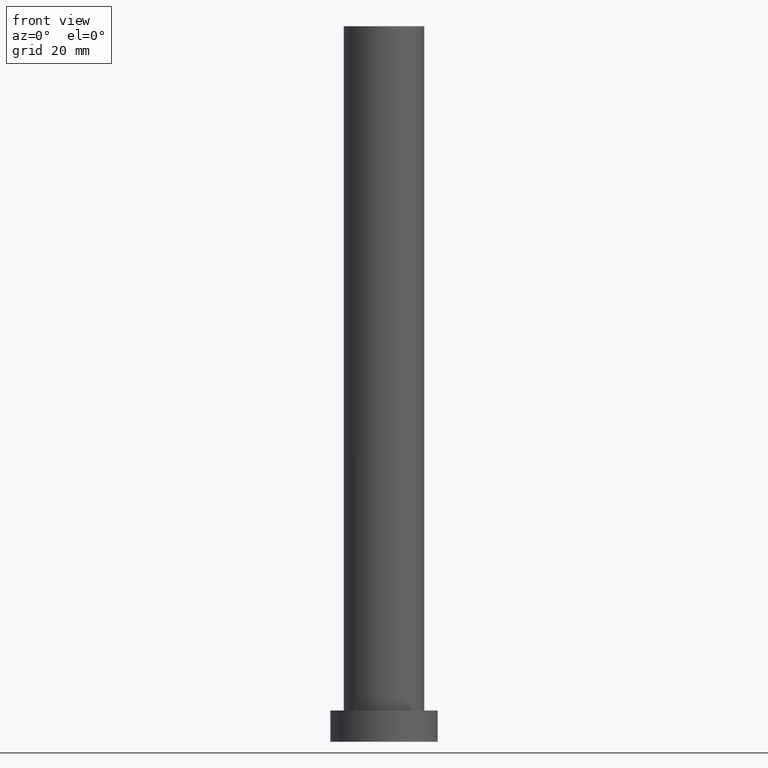
[diagram: clean part render]
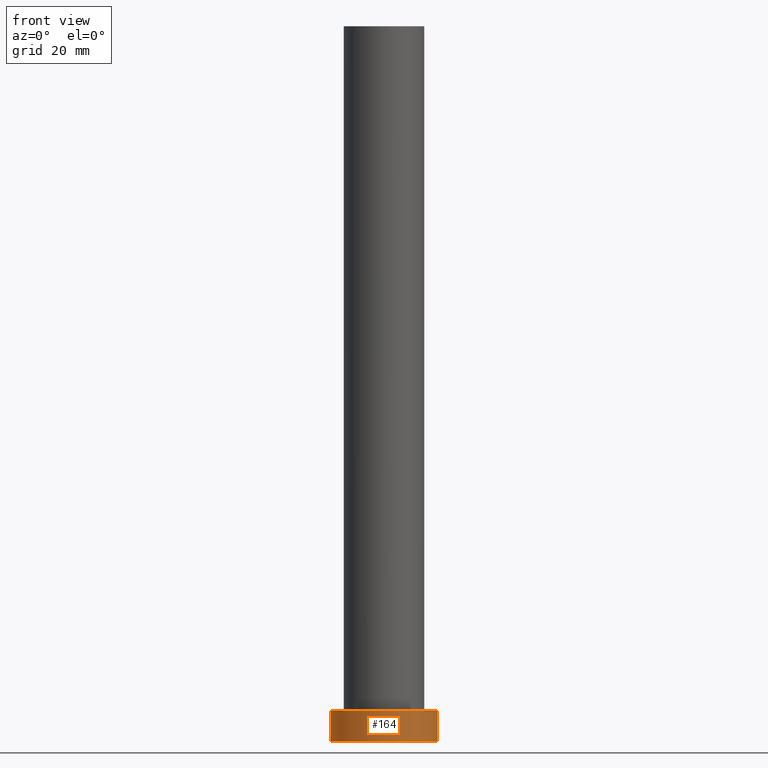
[diagram: same view with one face highlighted and labeled with its STEP entity id]
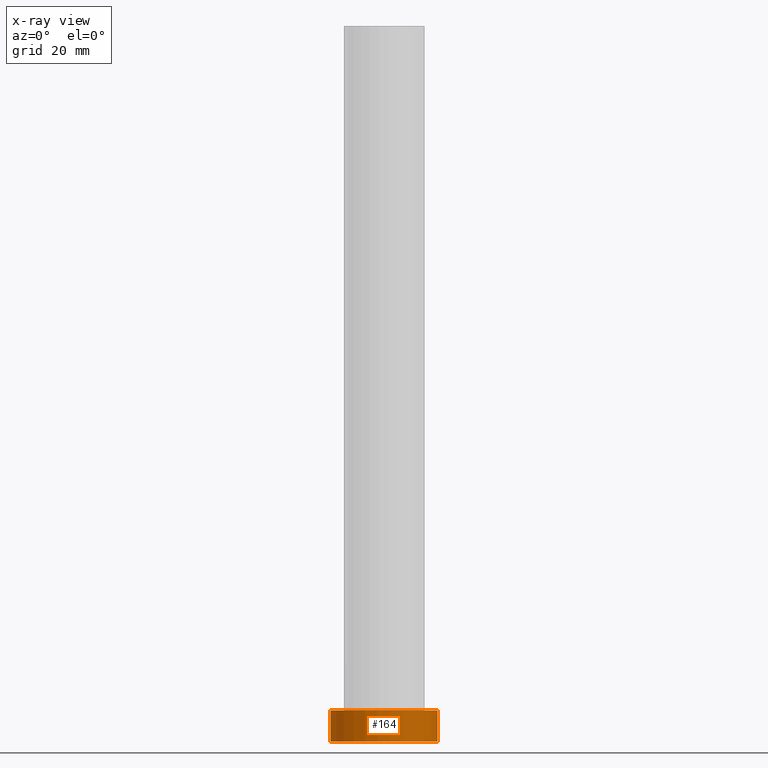
[diagram: x-ray of the same camera — body ghosted, the highlighted face saturated]
A machine part, front view. The second image highlights one B-rep face of the part: STEP entity #164.
The next image is the same camera in x-ray: the body ghosted, the highlighted face saturated — about 0% of this face is hidden behind the body in this view.
In plain terms, the highlighted cylindrical surface (partial cylindrical patch) has radius 12 mm, axis along (-0, -0, -1).
Its self-contained STEP definition (entity closure, byte-faithful):
#3 = VERTEX_POINT ( 'NONE', #44 ) ;
#6 = LINE ( 'NONE', #86, #38 ) ;
#31 = DIRECTION ( 'NONE',  ( -0.000000000000000000, -0.000000000000000000, -1.000000000000000000 ) ) ;
#38 = VECTOR ( 'NONE', #112, 1000.000000000000000 ) ;
#40 = EDGE_CURVE ( 'NONE', #3, #194, #202, .T. ) ;
#44 = CARTESIAN_POINT ( 'NONE',  ( 12.00000000000000178, 1.469576158976824144E-15, 7.000000000000000000 ) ) ;
#55 = AXIS2_PLACEMENT_3D ( 'NONE', #209, #114, #250 ) ;
#63 = ORIENTED_EDGE ( 'NONE', *, *, #83, .F. ) ;
#70 = CARTESIAN_POINT ( 'NONE',  ( 0.000000000000000000, 0.000000000000000000, 7.000000000000000000 ) ) ;
#73 = AXIS2_PLACEMENT_3D ( 'NONE', #70, #127, #246 ) ;
#78 = EDGE_CURVE ( 'NONE', #103, #199, #6, .T. ) ;
#79 = ORIENTED_EDGE ( 'NONE', *, *, #239, .T. ) ;
#83 = EDGE_CURVE ( 'NONE', #103, #3, #182, .T. ) ;
#84 = EDGE_LOOP ( 'NONE', ( #178, #63, #100, #79 ) ) ;
#86 = CARTESIAN_POINT ( 'NONE',  ( -12.00000000000000178, 0.000000000000000000, 7.000000000000000000 ) ) ;
#87 = DIRECTION ( 'NONE',  ( -0.000000000000000000, -0.000000000000000000, -1.000000000000000000 ) ) ;
#90 = CYLINDRICAL_SURFACE ( 'NONE', #216, 12.00000000000000178 ) ;
#100 = ORIENTED_EDGE ( 'NONE', *, *, #78, .T. ) ;
#103 = VERTEX_POINT ( 'NONE', #122 ) ;
#105 = CARTESIAN_POINT ( 'NONE',  ( 12.00000000000000178, 1.469576158976824144E-15, 7.000000000000000000 ) ) ;
#112 = DIRECTION ( 'NONE',  ( -0.000000000000000000, -0.000000000000000000, -1.000000000000000000 ) ) ;
#114 = DIRECTION ( 'NONE',  ( 0.000000000000000000, 0.000000000000000000, 1.000000000000000000 ) ) ;
#122 = CARTESIAN_POINT ( 'NONE',  ( -12.00000000000000178, 0.000000000000000000, 7.000000000000000000 ) ) ;
#127 = DIRECTION ( 'NONE',  ( 0.000000000000000000, 0.000000000000000000, 1.000000000000000000 ) ) ;
#144 = CARTESIAN_POINT ( 'NONE',  ( 0.000000000000000000, 0.000000000000000000, 7.000000000000000000 ) ) ;
#163 = CARTESIAN_POINT ( 'NONE',  ( 12.00000000000000178, 1.469576158976824144E-15, 0.000000000000000000 ) ) ;
#164 = ADVANCED_FACE ( 'NONE', ( #207 ), #90, .T. ) ;
#178 = ORIENTED_EDGE ( 'NONE', *, *, #40, .F. ) ;
#182 = CIRCLE ( 'NONE', #73, 12.00000000000000178 ) ;
#194 = VERTEX_POINT ( 'NONE', #163 ) ;
#199 = VERTEX_POINT ( 'NONE', #226 ) ;
#202 = LINE ( 'NONE', #105, #203 ) ;
#203 = VECTOR ( 'NONE', #31, 1000.000000000000000 ) ;
#207 = FACE_OUTER_BOUND ( 'NONE', #84, .T. ) ;
#209 = CARTESIAN_POINT ( 'NONE',  ( 0.000000000000000000, 0.000000000000000000, 0.000000000000000000 ) ) ;
#216 = AXIS2_PLACEMENT_3D ( 'NONE', #144, #87, #242 ) ;
#223 = CIRCLE ( 'NONE', #55, 12.00000000000000178 ) ;
#226 = CARTESIAN_POINT ( 'NONE',  ( -12.00000000000000178, 0.000000000000000000, 0.000000000000000000 ) ) ;
#239 = EDGE_CURVE ( 'NONE', #199, #194, #223, .T. ) ;
#242 = DIRECTION ( 'NONE',  ( -1.000000000000000000, 0.000000000000000000, 0.000000000000000000 ) ) ;
#246 = DIRECTION ( 'NONE',  ( 1.000000000000000000, 0.000000000000000000, 0.000000000000000000 ) ) ;
#250 = DIRECTION ( 'NONE',  ( 1.000000000000000000, 0.000000000000000000, 0.000000000000000000 ) ) ;